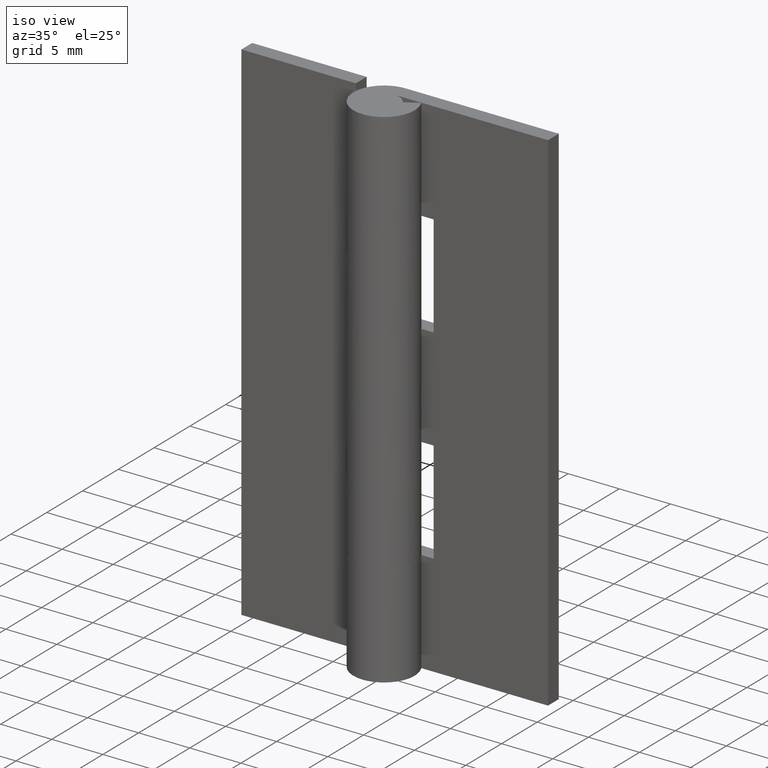
[diagram: clean part render]
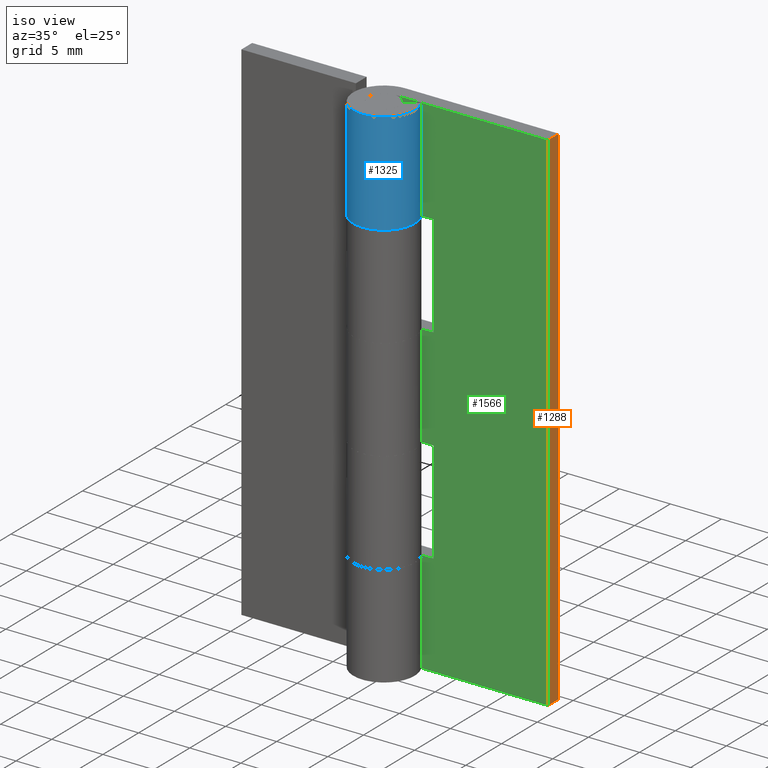
[diagram: same view with three faces highlighted in distinct colors, each labeled with its STEP entity id]
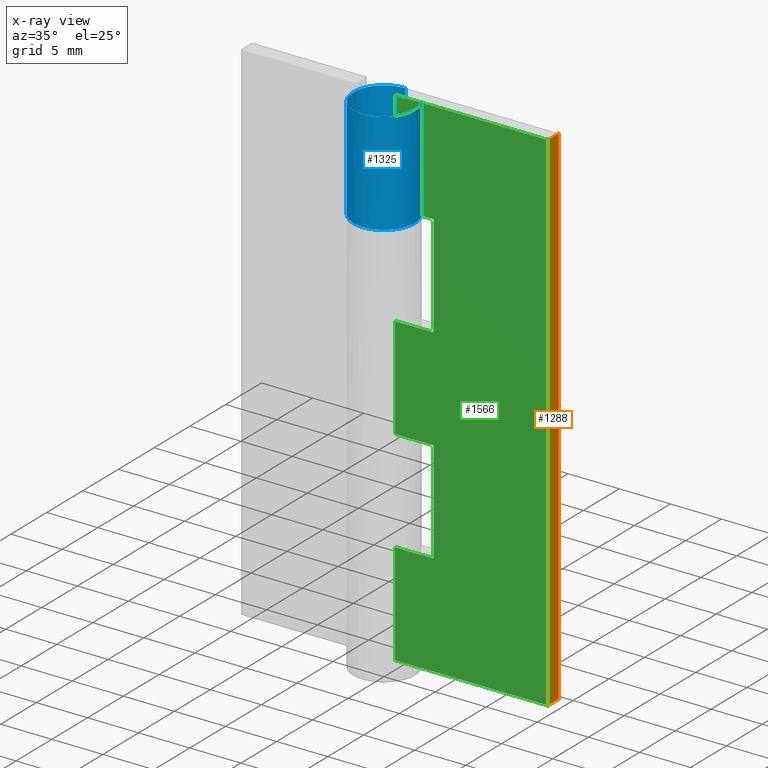
[diagram: x-ray of the same camera — body ghosted, the three highlighted faces saturated]
A machine part, iso view with three faces highlighted in distinct colors.
The next image is the same camera in x-ray (body ghosted, the three faces saturated) — at least one of them is partly hidden behind the body in this view.
Their STEP definitions:

[orange] entity #1288 — the highlighted face is a freeform B-spline surface patch.
#1120=CARTESIAN_POINT('',(15.0,3.0,0.0));
#1121=VERTEX_POINT('',#1120);
#1127=CARTESIAN_POINT('',(15.0,1.500000000000000,0.0));
#1128=VERTEX_POINT('',#1127);
#1129=CARTESIAN_POINT('',(15.0,3.0,0.0));
#1130=CARTESIAN_POINT('',(15.0,1.500000000000000,0.0));
#1131=QUASI_UNIFORM_CURVE('',1,(#1129,#1130),.UNSPECIFIED.,.F.,.U.);
#1132=EDGE_CURVE('',#1121,#1128,#1131,.T.);
#1198=CARTESIAN_POINT('',(15.0,3.0,50.0));
#1199=VERTEX_POINT('',#1198);
#1254=CARTESIAN_POINT('',(15.0,1.500000000000000,50.0));
#1255=VERTEX_POINT('',#1254);
#1261=CARTESIAN_POINT('',(15.0,3.0,50.0));
#1262=CARTESIAN_POINT('',(15.0,1.500000000000000,50.0));
#1263=QUASI_UNIFORM_CURVE('',1,(#1261,#1262),.UNSPECIFIED.,.F.,.U.);
#1264=EDGE_CURVE('',#1199,#1255,#1263,.T.);
#1269=CARTESIAN_POINT('',(15.0,1.425075002907291,52.497499903090286));
#1270=CARTESIAN_POINT('',(15.0,1.425075002907291,-2.497501244194806));
#1271=CARTESIAN_POINT('',(15.0,3.074925037325845,52.497499903090301));
#1272=CARTESIAN_POINT('',(15.0,3.074925037325845,-2.497501244194806));
#1273=B_SPLINE_SURFACE_WITH_KNOTS('',1,1,((#1269,#1271),(#1270,#1272)),.UNSPECIFIED.,.F.,.F.,.U.,(2,2),(2,2),(0.0,54.995001147285109),(0.041708334948495,0.958291687403247),.UNSPECIFIED.);
#1274=ORIENTED_EDGE('',*,*,#1132,.F.);
#1275=CARTESIAN_POINT('',(15.0,3.0,50.0));
#1276=CARTESIAN_POINT('',(15.0,3.0,0.0));
#1277=QUASI_UNIFORM_CURVE('',1,(#1275,#1276),.UNSPECIFIED.,.F.,.U.);
#1278=EDGE_CURVE('',#1199,#1121,#1277,.T.);
#1279=ORIENTED_EDGE('',*,*,#1278,.F.);
#1280=ORIENTED_EDGE('',*,*,#1264,.T.);
#1281=CARTESIAN_POINT('',(15.0,1.500000000000000,50.0));
#1282=CARTESIAN_POINT('',(15.0,1.500000000000000,0.0));
#1283=QUASI_UNIFORM_CURVE('',1,(#1281,#1282),.UNSPECIFIED.,.F.,.U.);
#1284=EDGE_CURVE('',#1255,#1128,#1283,.T.);
#1285=ORIENTED_EDGE('',*,*,#1284,.T.);
#1286=EDGE_LOOP('',(#1274,#1279,#1280,#1285));
#1287=FACE_OUTER_BOUND('',#1286,.T.);
#1288=ADVANCED_FACE('',(#1287),#1273,.T.);

[blue] entity #1325 — the highlighted face is a freeform B-spline surface patch.
#1043=CARTESIAN_POINT('',(2.626309197333780,1.450000000000000,40.0));
#1044=VERTEX_POINT('',#1043);
#1050=CARTESIAN_POINT('',(0.0,3.0,40.0));
#1051=VERTEX_POINT('',#1050);
#1052=CARTESIAN_POINT('',(0.0,3.0,40.0));
#1053=CARTESIAN_POINT('',(-2.290598042424808,3.0,40.0));
#1054=CARTESIAN_POINT('',(-2.894028888043301,0.790314364775724,40.0));
#1055=CARTESIAN_POINT('',(-3.497459733661794,-1.419371270448550,40.0));
#1056=CARTESIAN_POINT('',(-1.524795068197693,-2.583602136552761,40.0));
#1057=CARTESIAN_POINT('',(0.447869597266408,-3.747833002656974,40.0));
#1058=CARTESIAN_POINT('',(2.090650590886088,-2.151552952364328,40.0));
#1059=CARTESIAN_POINT('',(3.733431584505768,-0.555272902071681,40.0));
#1060=CARTESIAN_POINT('',(2.626309197333781,1.449999999999996,40.0));
#1068=(BOUNDED_CURVE()B_SPLINE_CURVE(2,(#1052,#1053,#1054,#1055,#1056,#1057,#1058,#1059,#1060),.UNSPECIFIED.,.F.,.U.)B_SPLINE_CURVE_WITH_KNOTS((3,2,2,2,3),(0.0,0.250000000000000,0.500000000000000,0.750000000000000,1.0),.UNSPECIFIED.)CURVE()GEOMETRIC_REPRESENTATION_ITEM()RATIONAL_B_SPLINE_CURVE((1.0,0.794807562115481,1.0,0.794807562115481,1.0,0.794807562115481,1.0,0.794807562115481,1.0))REPRESENTATION_ITEM(''));
#1069=EDGE_CURVE('',#1051,#1044,#1068,.T.);
#1196=CARTESIAN_POINT('',(-5.510729E-016,3.0,50.0));
#1197=VERTEX_POINT('',#1196);
#1205=CARTESIAN_POINT('',(2.626309197333780,1.450000000000000,50.0));
#1206=VERTEX_POINT('',#1205);
#1207=CARTESIAN_POINT('',(2.626309197333780,1.450000000000000,50.0));
#1208=CARTESIAN_POINT('',(3.733431584505770,-0.555272902071675,50.000000000000007));
#1209=CARTESIAN_POINT('',(2.090650590886091,-2.151552952364324,50.0));
#1210=CARTESIAN_POINT('',(0.447869597266413,-3.747833002656972,50.000000000000007));
#1211=CARTESIAN_POINT('',(-1.524795068197689,-2.583602136552764,50.0));
#1212=CARTESIAN_POINT('',(-3.497459733661792,-1.419371270448555,50.000000000000007));
#1213=CARTESIAN_POINT('',(-2.894028888043301,0.790314364775722,50.0));
#1214=CARTESIAN_POINT('',(-2.290598042424809,3.000000000000000,50.000000000000007));
#1215=CARTESIAN_POINT('',(0.0,3.0,50.0));
#1223=(BOUNDED_CURVE()B_SPLINE_CURVE(2,(#1207,#1208,#1209,#1210,#1211,#1212,#1213,#1214,#1215),.UNSPECIFIED.,.F.,.U.)B_SPLINE_CURVE_WITH_KNOTS((3,2,2,2,3),(0.0,0.250000000000000,0.500000000000000,0.750000000000000,1.0),.UNSPECIFIED.)CURVE()GEOMETRIC_REPRESENTATION_ITEM()RATIONAL_B_SPLINE_CURVE((1.0,0.794807562115481,1.0,0.794807562115481,1.0,0.794807562115481,1.0,0.794807562115481,1.0))REPRESENTATION_ITEM(''));
#1224=EDGE_CURVE('',#1206,#1197,#1223,.T.);
#1289=CARTESIAN_POINT('',(0.078530844923623,2.998971974926671,50.250000000000007));
#1290=CARTESIAN_POINT('',(0.078530844923623,2.998971974926671,39.743749999999991));
#1291=CARTESIAN_POINT('',(-3.559513073218585,3.094237507632406,50.250000000000007));
#1292=CARTESIAN_POINT('',(-3.559513073218585,3.094237507632406,39.743749999999991));
#1293=CARTESIAN_POINT('',(-2.958856804611695,-0.495142817582027,50.250000000000007));
#1294=CARTESIAN_POINT('',(-2.958856804611695,-0.495142817582027,39.743749999999991));
#1295=CARTESIAN_POINT('',(-2.358200536004804,-4.084523142796462,50.250000000000007));
#1296=CARTESIAN_POINT('',(-2.358200536004804,-4.084523142796462,39.743749999999991));
#1297=CARTESIAN_POINT('',(1.050622143778396,-2.810016567745195,50.250000000000007));
#1298=CARTESIAN_POINT('',(1.050622143778396,-2.810016567745195,39.743749999999991));
#1299=CARTESIAN_POINT('',(4.459444823561597,-1.535509992693930,50.250000000000007));
#1300=CARTESIAN_POINT('',(4.459444823561597,-1.535509992693930,39.743749999999991));
#1301=CARTESIAN_POINT('',(2.557920493062281,1.567495694147839,50.250000000000007));
#1302=CARTESIAN_POINT('',(2.557920493062281,1.567495694147839,39.743749999999991));
#1310=(BOUNDED_SURFACE()B_SPLINE_SURFACE(1,2,((#1289,#1291,#1293,#1295,#1297,#1299,#1301),(#1290,#1292,#1294,#1296,#1298,#1300,#1302)),.UNSPECIFIED.,.F.,.F.,.U.)B_SPLINE_SURFACE_WITH_KNOTS((2,2),(3,2,2,3),(0.0,10.506250000000019),(0.0,5.659567425254652,11.319134850509300,16.978702275763961),.UNSPECIFIED.)GEOMETRIC_REPRESENTATION_ITEM()RATIONAL_B_SPLINE_SURFACE(((1.0,0.636078220277764,1.0,0.636078220277764,1.0,0.636078220277764,1.0),(1.0,0.636078220277764,1.0,0.636078220277764,1.0,0.636078220277764,1.0)))REPRESENTATION_ITEM('')SURFACE());
#1311=ORIENTED_EDGE('',*,*,#1069,.T.);
#1312=CARTESIAN_POINT('',(2.626309197333780,1.450000000000000,50.0));
#1313=CARTESIAN_POINT('',(2.626309197333780,1.450000000000000,40.0));
#1314=QUASI_UNIFORM_CURVE('',1,(#1312,#1313),.UNSPECIFIED.,.F.,.U.);
#1315=EDGE_CURVE('',#1206,#1044,#1314,.T.);
#1316=ORIENTED_EDGE('',*,*,#1315,.F.);
#1317=ORIENTED_EDGE('',*,*,#1224,.T.);
#1318=CARTESIAN_POINT('',(-5.510729E-016,3.0,50.0));
#1319=CARTESIAN_POINT('',(0.0,3.0,40.0));
#1320=QUASI_UNIFORM_CURVE('',1,(#1318,#1319),.UNSPECIFIED.,.F.,.U.);
#1321=EDGE_CURVE('',#1197,#1051,#1320,.T.);
#1322=ORIENTED_EDGE('',*,*,#1321,.T.);
#1323=EDGE_LOOP('',(#1311,#1316,#1317,#1322));
#1324=FACE_OUTER_BOUND('',#1323,.T.);
#1325=ADVANCED_FACE('',(#1324),#1310,.T.);

[green] entity #1566 — the highlighted face is a freeform B-spline surface patch.
#766=CARTESIAN_POINT('',(0.0,1.500000000000000,20.0));
#767=VERTEX_POINT('',#766);
#824=CARTESIAN_POINT('',(3.800003000000000,1.499999999999946,20.0));
#825=VERTEX_POINT('',#824);
#831=CARTESIAN_POINT('',(0.0,1.500000000000000,20.0));
#832=CARTESIAN_POINT('',(3.800003000000000,1.499999999999946,20.0));
#833=QUASI_UNIFORM_CURVE('',1,(#831,#832),.UNSPECIFIED.,.F.,.U.);
#834=EDGE_CURVE('',#767,#825,#833,.T.);
#844=CARTESIAN_POINT('',(3.800003000000000,1.499999999999946,10.0));
#845=VERTEX_POINT('',#844);
#888=CARTESIAN_POINT('',(0.0,1.500000000000000,10.0));
#889=VERTEX_POINT('',#888);
#909=CARTESIAN_POINT('',(3.800003000000000,1.499999999999946,10.0));
#910=CARTESIAN_POINT('',(0.0,1.500000000000000,10.0));
#911=QUASI_UNIFORM_CURVE('',1,(#909,#910),.UNSPECIFIED.,.F.,.U.);
#912=EDGE_CURVE('',#845,#889,#911,.T.);
#929=CARTESIAN_POINT('',(3.800003000000000,1.499999999999946,20.0));
#930=CARTESIAN_POINT('',(3.800003000000000,1.499999999999946,10.0));
#931=QUASI_UNIFORM_CURVE('',1,(#929,#930),.UNSPECIFIED.,.F.,.U.);
#932=EDGE_CURVE('',#825,#845,#931,.T.);
#942=CARTESIAN_POINT('',(3.800003000000000,1.499999999999946,30.0));
#943=VERTEX_POINT('',#942);
#986=CARTESIAN_POINT('',(0.0,1.500000000000000,30.0));
#987=VERTEX_POINT('',#986);
#1007=CARTESIAN_POINT('',(3.800003000000000,1.499999999999946,30.0));
#1008=CARTESIAN_POINT('',(0.0,1.500000000000000,30.0));
#1009=QUASI_UNIFORM_CURVE('',1,(#1007,#1008),.UNSPECIFIED.,.F.,.U.);
#1010=EDGE_CURVE('',#943,#987,#1009,.T.);
#1020=CARTESIAN_POINT('',(0.0,1.500000000000000,40.0));
#1021=VERTEX_POINT('',#1020);
#1078=CARTESIAN_POINT('',(3.800003000000000,1.499999999999946,40.0));
#1079=VERTEX_POINT('',#1078);
#1085=CARTESIAN_POINT('',(0.0,1.500000000000000,40.0));
#1086=CARTESIAN_POINT('',(3.800003000000000,1.499999999999946,40.0));
#1087=QUASI_UNIFORM_CURVE('',1,(#1085,#1086),.UNSPECIFIED.,.F.,.U.);
#1088=EDGE_CURVE('',#1021,#1079,#1087,.T.);
#1105=CARTESIAN_POINT('',(3.800003000000000,1.499999999999946,40.0));
#1106=CARTESIAN_POINT('',(3.800003000000000,1.499999999999946,30.0));
#1107=QUASI_UNIFORM_CURVE('',1,(#1105,#1106),.UNSPECIFIED.,.F.,.U.);
#1108=EDGE_CURVE('',#1079,#943,#1107,.T.);
#1127=CARTESIAN_POINT('',(15.0,1.500000000000000,0.0));
#1128=VERTEX_POINT('',#1127);
#1134=CARTESIAN_POINT('',(0.0,1.500000000000000,0.0));
#1135=VERTEX_POINT('',#1134);
#1136=CARTESIAN_POINT('',(15.0,1.500000000000000,0.0));
#1137=CARTESIAN_POINT('',(0.0,1.500000000000000,0.0));
#1138=QUASI_UNIFORM_CURVE('',1,(#1136,#1137),.UNSPECIFIED.,.F.,.U.);
#1139=EDGE_CURVE('',#1128,#1135,#1138,.T.);
#1233=CARTESIAN_POINT('',(0.0,1.500000000000000,50.0));
#1234=VERTEX_POINT('',#1233);
#1254=CARTESIAN_POINT('',(15.0,1.500000000000000,50.0));
#1255=VERTEX_POINT('',#1254);
#1256=CARTESIAN_POINT('',(15.0,1.500000000000000,50.0));
#1257=CARTESIAN_POINT('',(0.0,1.500000000000000,50.0));
#1258=QUASI_UNIFORM_CURVE('',1,(#1256,#1257),.UNSPECIFIED.,.F.,.U.);
#1259=EDGE_CURVE('',#1255,#1234,#1258,.T.);
#1281=CARTESIAN_POINT('',(15.0,1.500000000000000,50.0));
#1282=CARTESIAN_POINT('',(15.0,1.500000000000000,0.0));
#1283=QUASI_UNIFORM_CURVE('',1,(#1281,#1282),.UNSPECIFIED.,.F.,.U.);
#1284=EDGE_CURVE('',#1255,#1128,#1283,.T.);
#1365=CARTESIAN_POINT('',(0.0,1.500000000000000,50.0));
#1366=CARTESIAN_POINT('',(0.0,1.500000000000000,40.0));
#1367=QUASI_UNIFORM_CURVE('',1,(#1365,#1366),.UNSPECIFIED.,.F.,.U.);
#1368=EDGE_CURVE('',#1234,#1021,#1367,.T.);
#1504=CARTESIAN_POINT('',(0.0,1.500000000000000,30.0));
#1505=CARTESIAN_POINT('',(0.0,1.500000000000000,20.0));
#1506=QUASI_UNIFORM_CURVE('',1,(#1504,#1505),.UNSPECIFIED.,.F.,.U.);
#1507=EDGE_CURVE('',#987,#767,#1506,.T.);
#1539=CARTESIAN_POINT('',(0.0,1.500000000000000,10.0));
#1540=CARTESIAN_POINT('',(0.0,1.500000000000000,0.0));
#1541=QUASI_UNIFORM_CURVE('',1,(#1539,#1540),.UNSPECIFIED.,.F.,.U.);
#1542=EDGE_CURVE('',#889,#1135,#1541,.T.);
#1547=CARTESIAN_POINT('',(-0.749249970927090,1.500000000000000,52.497499903090286));
#1548=CARTESIAN_POINT('',(-0.749249970927090,1.500000000000000,-2.497501244194806));
#1549=CARTESIAN_POINT('',(15.749250373258439,1.500000000000000,52.497499903090301));
#1550=CARTESIAN_POINT('',(15.749250373258439,1.500000000000000,-2.497501244194806));
#1551=B_SPLINE_SURFACE_WITH_KNOTS('',1,1,((#1547,#1549),(#1548,#1550)),.UNSPECIFIED.,.F.,.F.,.U.,(2,2),(2,2),(0.0,54.995001147285109),(0.0,16.498500344185530),.UNSPECIFIED.);
#1552=ORIENTED_EDGE('',*,*,#932,.T.);
#1553=ORIENTED_EDGE('',*,*,#912,.T.);
#1554=ORIENTED_EDGE('',*,*,#1542,.T.);
#1555=ORIENTED_EDGE('',*,*,#1139,.F.);
#1556=ORIENTED_EDGE('',*,*,#1284,.F.);
#1557=ORIENTED_EDGE('',*,*,#1259,.T.);
#1558=ORIENTED_EDGE('',*,*,#1368,.T.);
#1559=ORIENTED_EDGE('',*,*,#1088,.T.);
#1560=ORIENTED_EDGE('',*,*,#1108,.T.);
#1561=ORIENTED_EDGE('',*,*,#1010,.T.);
#1562=ORIENTED_EDGE('',*,*,#1507,.T.);
#1563=ORIENTED_EDGE('',*,*,#834,.T.);
#1564=EDGE_LOOP('',(#1552,#1553,#1554,#1555,#1556,#1557,#1558,#1559,#1560,#1561,#1562,#1563));
#1565=FACE_OUTER_BOUND('',#1564,.T.);
#1566=ADVANCED_FACE('',(#1565),#1551,.T.);